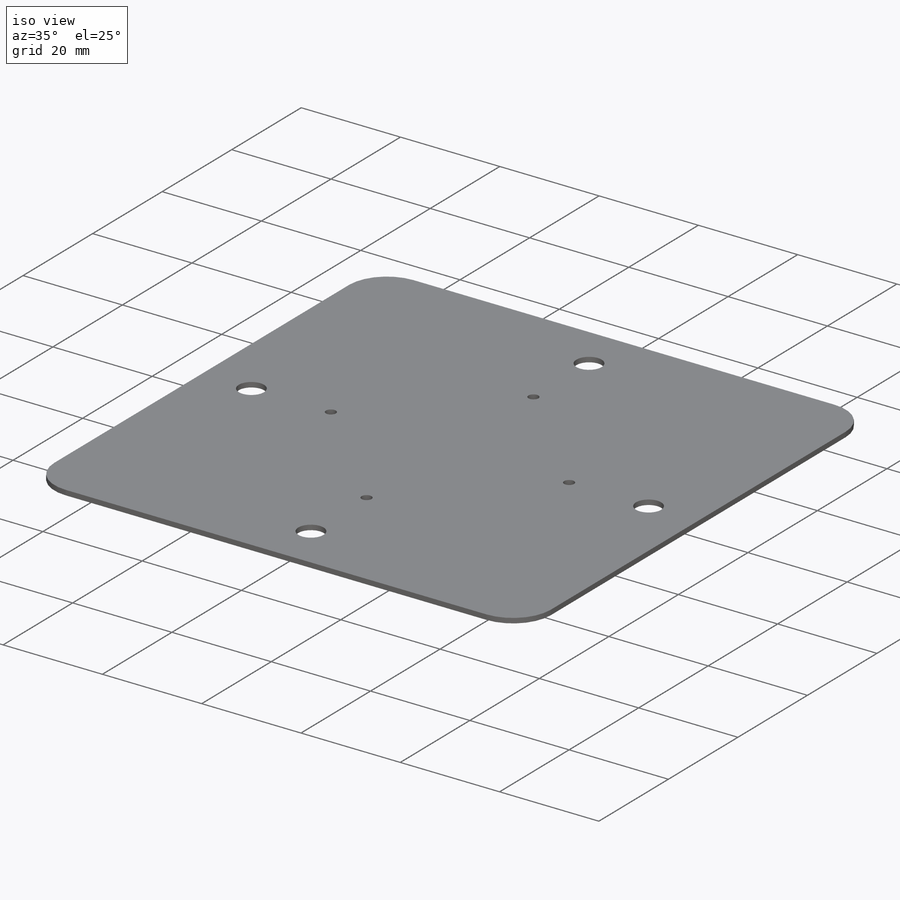
[diagram: iso view]
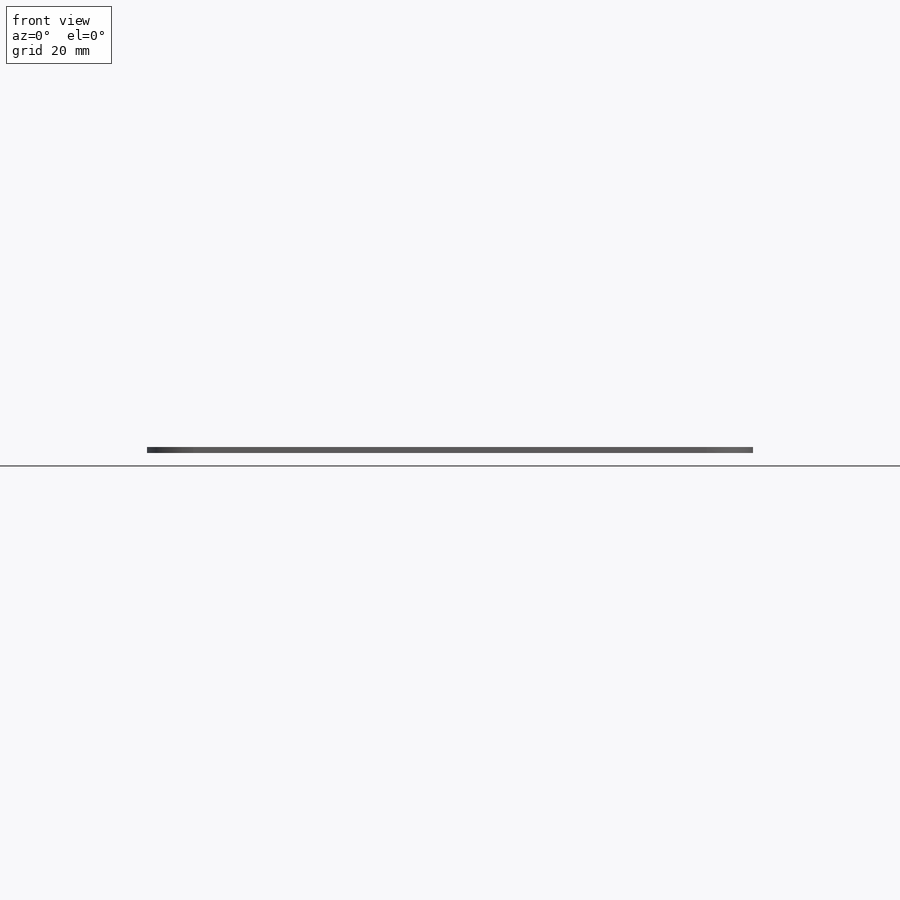
[diagram: front view]
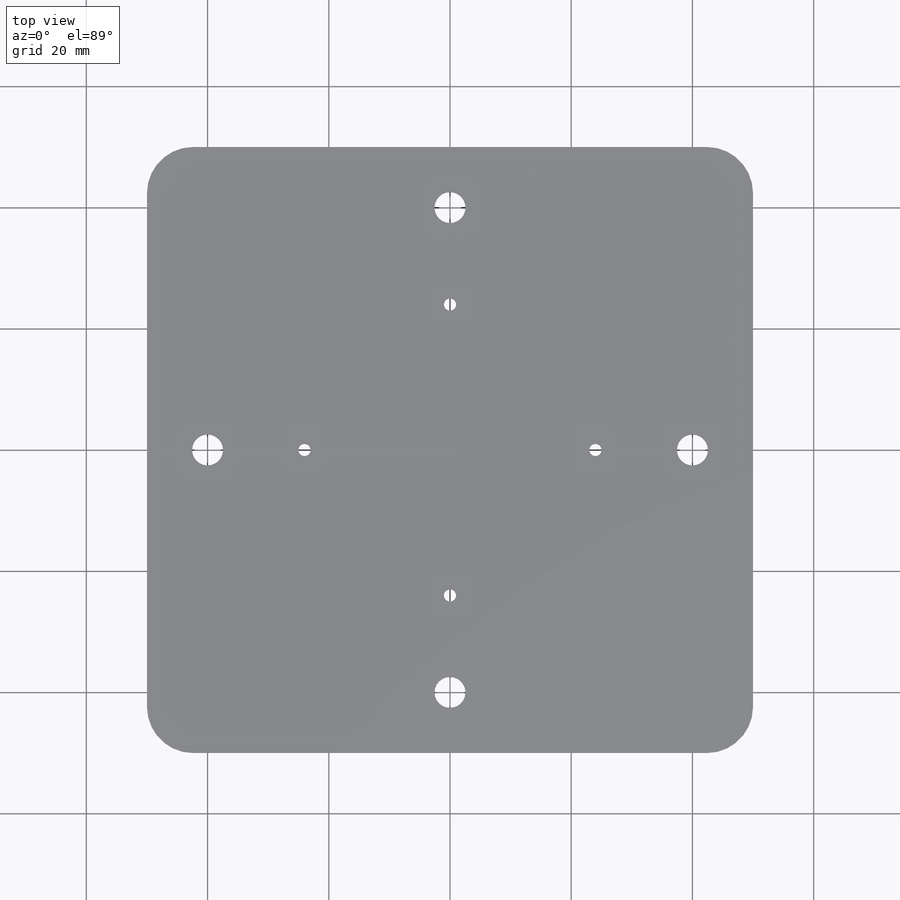
[diagram: top view]
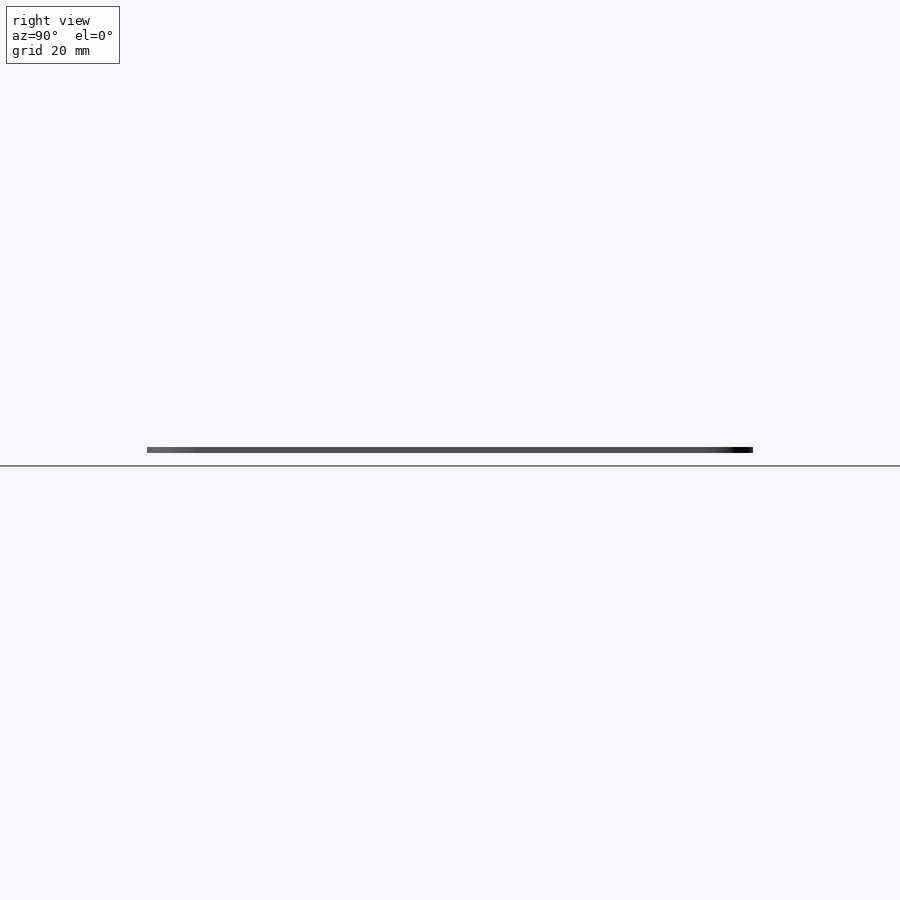
[diagram: right view]
SOLIDWORKS PART (.sldprt)
format: sldprt  version: not decoded by parser v0  size: 175,104 bytes
history: native  units: mm
features: sketch x4, cut_extrude x2, material x1, extrude x1 (+11 scaffold rows collapsed)
feature tree (19):
  scaffold x11  (default folders/planes/origin — collapsed)
  material  "Material <not specified>"
  sketch  "Sketch1"  dims[D3=7.62mm D1=100.0mm D2=100.0mm]
  extrude  "Boss-Extrude1"  Depth=1mm
  sketch  "Sketch2"  dims[c1.D1=~3.597445mm c1.D2=5.1mm c1.D3=5.1mm c1.D4=5.1mm c1.D5=5.1mm c2.D1=40.0mm c2.D2=2.0mm]
  cut_extrude  "Cut-Extrude6"  Depth=2.54mm
  sketch  "Sketch3"  dims[c1.D2=25.4mm c1.D1=48.0mm c2.D2=5.0mm c2.D3=2.0mm c2.D1=24.0mm]
  cut_extrude  "Cut-Extrude7"  Depth=2.54mm
  sketch  "3DSketch2"
decode coverage: 6 of 7 modeling features carry decoded parameters
note: ~ marks probable driven/reference dimensions
note: suppression state not decoded; provenance and decode notes live in map.json
